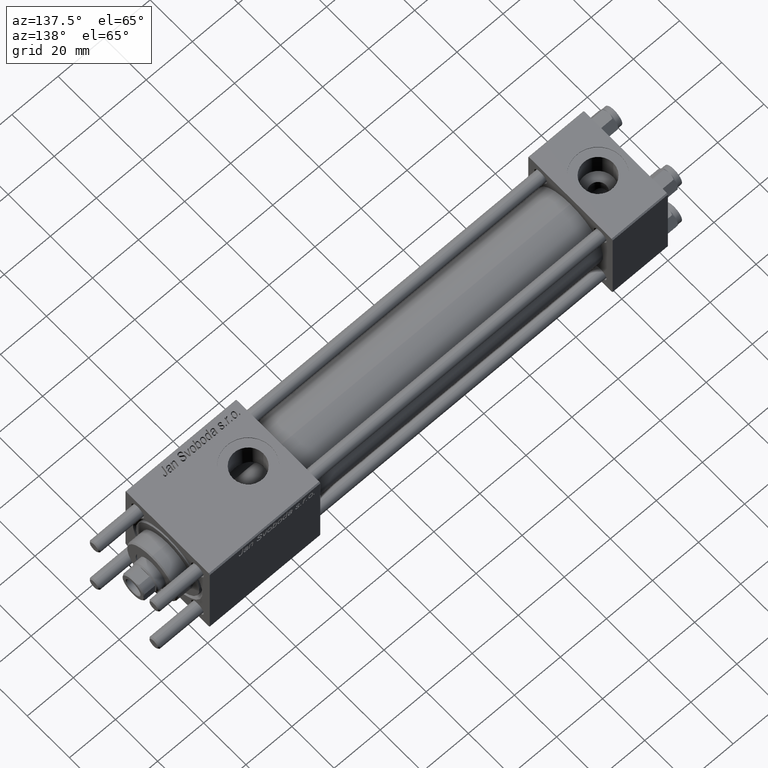
[diagram: clean part render]
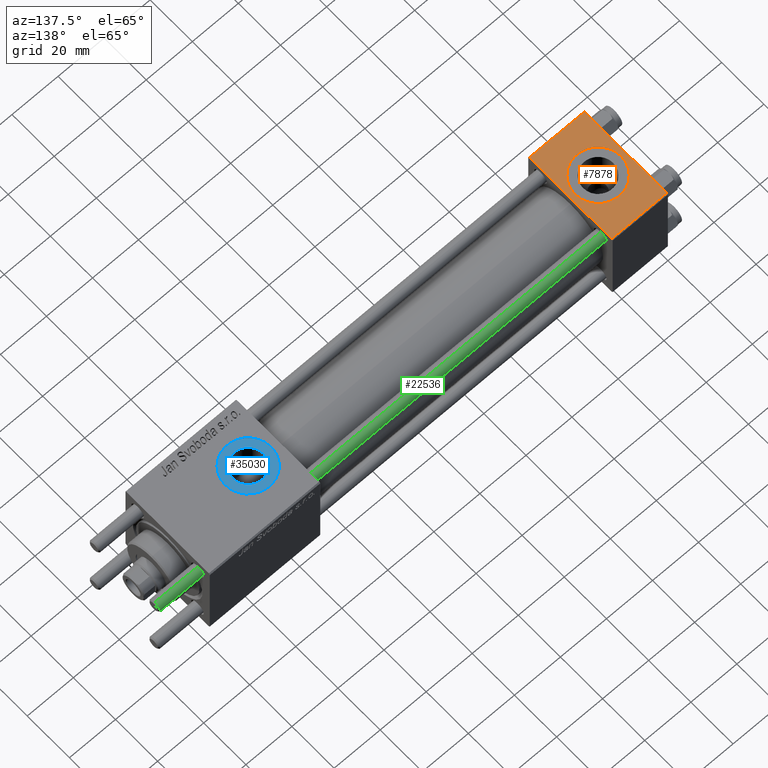
[diagram: same view with three faces highlighted in distinct colors, each labeled with its STEP entity id]
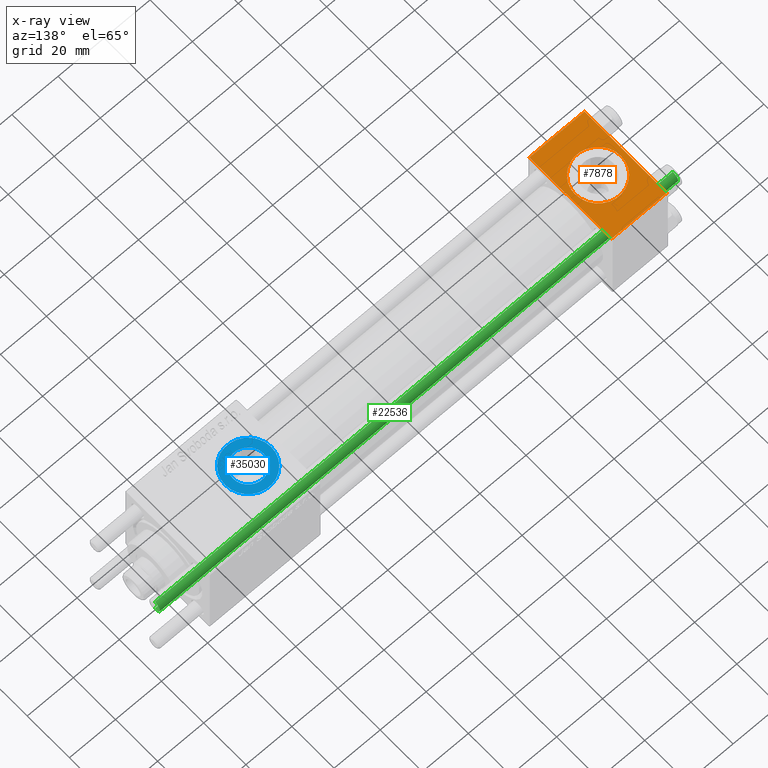
[diagram: x-ray of the same camera — body ghosted, the three highlighted faces saturated]
A machine part, auxiliary view with three faces highlighted in distinct colors.
The next image is the same camera in x-ray (body ghosted, the three faces saturated) — at least one of them is partly hidden behind the body in this view.
Their STEP definitions:

[orange] entity #7878 — the highlighted planar face has unit normal (0, 0, -1).
#1132 = EDGE_LOOP ( 'NONE', ( #19193, #31298 ) ) ;
#3877 = VERTEX_POINT ( 'NONE', #51903 ) ;
#5362 = AXIS2_PLACEMENT_3D ( 'NONE', #57472, #30536, #21689 ) ;
#6074 = VERTEX_POINT ( 'NONE', #17380 ) ;
#6558 = DIRECTION ( 'NONE',  ( 0.000000000000000000, 0.000000000000000000, 1.000000000000000000 ) ) ;
#7878 = ADVANCED_FACE ( 'NONE', ( #57765, #49479 ), #53912, .F. ) ;
#9175 = DIRECTION ( 'NONE',  ( -1.000000000000000000, 0.000000000000000000, 0.000000000000000000 ) ) ;
#10989 = CARTESIAN_POINT ( 'NONE',  ( 12.00000000000000000, 1.540743955509788682E-30, 19.99999999999999645 ) ) ;
#12263 = VERTEX_POINT ( 'NONE', #24461 ) ;
#12988 = VERTEX_POINT ( 'NONE', #41392 ) ;
#17380 = CARTESIAN_POINT ( 'NONE',  ( 2.000000000000003553, 1.224646799147354440E-15, 19.99999999999999645 ) ) ;
#18471 = CIRCLE ( 'NONE', #58136, 9.999999999999998224 ) ;
#19193 = ORIENTED_EDGE ( 'NONE', *, *, #33051, .F. ) ;
#19494 = VECTOR ( 'NONE', #9175, 1000.000000000000000 ) ;
#20045 = LINE ( 'NONE', #29478, #38331 ) ;
#21689 = DIRECTION ( 'NONE',  ( 0.000000000000000000, 1.000000000000000000, 2.602085213965210149E-16 ) ) ;
#22094 = CARTESIAN_POINT ( 'NONE',  ( 0.000000000000000000, -19.49999999999999289, 19.99999999999998934 ) ) ;
#23766 = CARTESIAN_POINT ( 'NONE',  ( 22.00000000000000000, 1.540743955509788682E-30, 19.99999999999999645 ) ) ;
#24461 = CARTESIAN_POINT ( 'NONE',  ( 0.000000000000000000, 19.50000000000000000, 20.00000000000000000 ) ) ;
#24580 = DIRECTION ( 'NONE',  ( 1.000000000000000000, 0.000000000000000000, 0.000000000000000000 ) ) ;
#25229 = DIRECTION ( 'NONE',  ( 0.000000000000000000, -1.000000000000000000, -2.602085213965210149E-16 ) ) ;
#26885 = EDGE_CURVE ( 'NONE', #12988, #3877, #47720, .T. ) ;
#29478 = CARTESIAN_POINT ( 'NONE',  ( 0.000000000000000000, 20.00000000000000000, 20.00000000000000000 ) ) ;
#30536 = DIRECTION ( 'NONE',  ( 0.000000000000000000, 2.602085213965210149E-16, -1.000000000000000000 ) ) ;
#30614 = DIRECTION ( 'NONE',  ( 1.000000000000000000, 0.000000000000000000, 0.000000000000000000 ) ) ;
#31298 = ORIENTED_EDGE ( 'NONE', *, *, #56520, .F. ) ;
#32982 = EDGE_CURVE ( 'NONE', #12263, #38892, #20045, .T. ) ;
#33051 = EDGE_CURVE ( 'NONE', #36404, #6074, #18471, .T. ) ;
#33211 = VECTOR ( 'NONE', #25229, 1000.000000000000000 ) ;
#34188 = EDGE_CURVE ( 'NONE', #12988, #12263, #36967, .T. ) ;
#34325 = ORIENTED_EDGE ( 'NONE', *, *, #34188, .T. ) ;
#34988 = ORIENTED_EDGE ( 'NONE', *, *, #26885, .F. ) ;
#35261 = CARTESIAN_POINT ( 'NONE',  ( 24.00000000000000000, 20.00000000000000000, 20.00000000000000000 ) ) ;
#36404 = VERTEX_POINT ( 'NONE', #23766 ) ;
#36967 = LINE ( 'NONE', #49678, #19494 ) ;
#38331 = VECTOR ( 'NONE', #42520, 1000.000000000000000 ) ;
#38892 = VERTEX_POINT ( 'NONE', #22094 ) ;
#39207 = ORIENTED_EDGE ( 'NONE', *, *, #41551, .T. ) ;
#39527 = LINE ( 'NONE', #49862, #42205 ) ;
#39741 = DIRECTION ( 'NONE',  ( 0.000000000000000000, 0.000000000000000000, 1.000000000000000000 ) ) ;
#39834 = ORIENTED_EDGE ( 'NONE', *, *, #32982, .T. ) ;
#41392 = CARTESIAN_POINT ( 'NONE',  ( 24.00000000000000000, 19.50000000000000000, 20.00000000000000000 ) ) ;
#41551 = EDGE_CURVE ( 'NONE', #38892, #3877, #39527, .T. ) ;
#42205 = VECTOR ( 'NONE', #30614, 1000.000000000000000 ) ;
#42520 = DIRECTION ( 'NONE',  ( 0.000000000000000000, -1.000000000000000000, -2.602085213965210149E-16 ) ) ;
#43488 = AXIS2_PLACEMENT_3D ( 'NONE', #10989, #6558, #24580 ) ;
#47267 = CIRCLE ( 'NONE', #43488, 9.999999999999998224 ) ;
#47720 = LINE ( 'NONE', #35261, #33211 ) ;
#49479 = FACE_OUTER_BOUND ( 'NONE', #56739, .T. ) ;
#49678 = CARTESIAN_POINT ( 'NONE',  ( 0.000000000000000000, 19.50000000000000000, 20.00000000000000000 ) ) ;
#49780 = CARTESIAN_POINT ( 'NONE',  ( 12.00000000000000000, 1.540743955509788682E-30, 19.99999999999999645 ) ) ;
#49862 = CARTESIAN_POINT ( 'NONE',  ( 24.00000000000000000, -19.49999999999999289, 19.99999999999998934 ) ) ;
#50080 = DIRECTION ( 'NONE',  ( 1.000000000000000000, 0.000000000000000000, 0.000000000000000000 ) ) ;
#51903 = CARTESIAN_POINT ( 'NONE',  ( 24.00000000000000000, -19.49999999999999289, 19.99999999999998934 ) ) ;
#53912 = PLANE ( 'NONE',  #5362 ) ;
#56520 = EDGE_CURVE ( 'NONE', #6074, #36404, #47267, .T. ) ;
#56739 = EDGE_LOOP ( 'NONE', ( #39834, #39207, #34988, #34325 ) ) ;
#57472 = CARTESIAN_POINT ( 'NONE',  ( 24.00000000000000000, 20.00000000000000000, 20.00000000000000000 ) ) ;
#57765 = FACE_BOUND ( 'NONE', #1132, .T. ) ;
#58136 = AXIS2_PLACEMENT_3D ( 'NONE', #49780, #39741, #50080 ) ;

[blue] entity #35030 — the highlighted planar face has unit normal (0, 0, 1).
#914 = AXIS2_PLACEMENT_3D ( 'NONE', #40180, #13274, #53477 ) ;
#1476 = CARTESIAN_POINT ( 'NONE',  ( 170.5800000000000409, -9.289058821378450943E-16, 19.80000000000000071 ) ) ;
#2653 = FACE_BOUND ( 'NONE', #19900, .T. ) ;
#4528 = VERTEX_POINT ( 'NONE', #26259 ) ;
#4620 = DIRECTION ( 'NONE',  ( -0.000000000000000000, -0.000000000000000000, -1.000000000000000000 ) ) ;
#4988 = VERTEX_POINT ( 'NONE', #51732 ) ;
#8526 = ORIENTED_EDGE ( 'NONE', *, *, #55396, .T. ) ;
#10045 = AXIS2_PLACEMENT_3D ( 'NONE', #20389, #38435, #16255 ) ;
#13274 = DIRECTION ( 'NONE',  ( 0.000000000000000000, 0.000000000000000000, 1.000000000000000000 ) ) ;
#16187 = EDGE_CURVE ( 'NONE', #4528, #37779, #29076, .T. ) ;
#16255 = DIRECTION ( 'NONE',  ( 1.000000000000000000, 0.000000000000000000, -0.000000000000000000 ) ) ;
#18466 = CARTESIAN_POINT ( 'NONE',  ( 154.0000000000000284, -5.100766768294525560E-16, 19.80000000000000071 ) ) ;
#18703 = AXIS2_PLACEMENT_3D ( 'NONE', #31506, #4620, #22657 ) ;
#18996 = ORIENTED_EDGE ( 'NONE', *, *, #41935, .T. ) ;
#19463 = DIRECTION ( 'NONE',  ( 1.000000000000000000, 0.000000000000000000, 0.000000000000000000 ) ) ;
#19900 = EDGE_LOOP ( 'NONE', ( #38485, #18996 ) ) ;
#20051 = DIRECTION ( 'NONE',  ( -0.000000000000000000, -0.000000000000000000, -1.000000000000000000 ) ) ;
#20389 = CARTESIAN_POINT ( 'NONE',  ( 164.0000000000000284, -1.734723475976806897E-15, 19.80000000000000071 ) ) ;
#20907 = EDGE_CURVE ( 'NONE', #38414, #4988, #26347, .T. ) ;
#20911 = CIRCLE ( 'NONE', #47357, 10.00000000000000888 ) ;
#22057 = EDGE_LOOP ( 'NONE', ( #8526, #37013 ) ) ;
#22657 = DIRECTION ( 'NONE',  ( 1.000000000000000000, 0.000000000000000000, 0.000000000000000000 ) ) ;
#22895 = DIRECTION ( 'NONE',  ( 0.000000000000000000, 0.000000000000000000, 1.000000000000000000 ) ) ;
#25101 = FACE_OUTER_BOUND ( 'NONE', #22057, .T. ) ;
#26259 = CARTESIAN_POINT ( 'NONE',  ( 157.4200000000000443, -1.734723475976806897E-15, 19.80000000000000071 ) ) ;
#26347 = CIRCLE ( 'NONE', #914, 10.00000000000000888 ) ;
#29076 = CIRCLE ( 'NONE', #18703, 6.580000000000002736 ) ;
#29245 = PLANE ( 'NONE',  #10045 ) ;
#31506 = CARTESIAN_POINT ( 'NONE',  ( 164.0000000000000284, -1.734723475976806897E-15, 19.80000000000000071 ) ) ;
#33751 = CIRCLE ( 'NONE', #51709, 6.580000000000002736 ) ;
#35030 = ADVANCED_FACE ( 'NONE', ( #2653, #25101 ), #29245, .T. ) ;
#37013 = ORIENTED_EDGE ( 'NONE', *, *, #20907, .T. ) ;
#37779 = VERTEX_POINT ( 'NONE', #1476 ) ;
#38414 = VERTEX_POINT ( 'NONE', #18466 ) ;
#38435 = DIRECTION ( 'NONE',  ( 0.000000000000000000, 0.000000000000000000, 1.000000000000000000 ) ) ;
#38485 = ORIENTED_EDGE ( 'NONE', *, *, #16187, .T. ) ;
#40180 = CARTESIAN_POINT ( 'NONE',  ( 164.0000000000000284, -1.734723475976806897E-15, 19.80000000000000071 ) ) ;
#41935 = EDGE_CURVE ( 'NONE', #37779, #4528, #33751, .T. ) ;
#47357 = AXIS2_PLACEMENT_3D ( 'NONE', #50985, #22895, #55118 ) ;
#50985 = CARTESIAN_POINT ( 'NONE',  ( 164.0000000000000284, -1.734723475976806897E-15, 19.80000000000000071 ) ) ;
#51709 = AXIS2_PLACEMENT_3D ( 'NONE', #56116, #20051, #19463 ) ;
#51732 = CARTESIAN_POINT ( 'NONE',  ( 174.0000000000000568, -1.734723475976806897E-15, 19.80000000000000071 ) ) ;
#53477 = DIRECTION ( 'NONE',  ( 1.000000000000000000, 0.000000000000000000, 0.000000000000000000 ) ) ;
#55118 = DIRECTION ( 'NONE',  ( 1.000000000000000000, 0.000000000000000000, 0.000000000000000000 ) ) ;
#55396 = EDGE_CURVE ( 'NONE', #4988, #38414, #20911, .T. ) ;
#56116 = CARTESIAN_POINT ( 'NONE',  ( 164.0000000000000284, -1.734723475976806897E-15, 19.80000000000000071 ) ) ;

[green] entity #22536 — the highlighted cylindrical surface (edge-blend (fillet) strip) has radius 2.5 mm, axis along (1, -0, -0).
#2560 = CARTESIAN_POINT ( 'NONE',  ( 2.500000000000000000, 3.061616997868383141E-16, 226.0000000000000000 ) ) ;
#2764 = CYLINDRICAL_SURFACE ( 'NONE', #19843, 2.500000000000000000 ) ;
#3981 = VERTEX_POINT ( 'NONE', #37058 ) ;
#6705 = CIRCLE ( 'NONE', #13270, 2.500000000000000000 ) ;
#6984 = LINE ( 'NONE', #2560, #14325 ) ;
#7074 = CIRCLE ( 'NONE', #20298, 2.500000000000000000 ) ;
#10614 = CARTESIAN_POINT ( 'NONE',  ( 0.000000000000000000, 0.000000000000000000, 0.4999999999999726885 ) ) ;
#11693 = LINE ( 'NONE', #34436, #50834 ) ;
#13270 = AXIS2_PLACEMENT_3D ( 'NONE', #10614, #36930, #28335 ) ;
#13643 = CARTESIAN_POINT ( 'NONE',  ( 2.500000000000000000, 3.061616997868383141E-16, 0.4999999999999726885 ) ) ;
#14325 = VECTOR ( 'NONE', #56665, 1000.000000000000000 ) ;
#16217 = CARTESIAN_POINT ( 'NONE',  ( 2.500000000000000000, 3.061616997868383141E-16, 225.5000000000000284 ) ) ;
#16340 = EDGE_CURVE ( 'NONE', #3981, #48843, #11693, .T. ) ;
#16363 = DIRECTION ( 'NONE',  ( -0.000000000000000000, -0.000000000000000000, -1.000000000000000000 ) ) ;
#18006 = ORIENTED_EDGE ( 'NONE', *, *, #26418, .T. ) ;
#19843 = AXIS2_PLACEMENT_3D ( 'NONE', #35245, #16363, #48562 ) ;
#20298 = AXIS2_PLACEMENT_3D ( 'NONE', #38232, #55394, #50962 ) ;
#22536 = ADVANCED_FACE ( 'NONE', ( #52146 ), #2764, .T. ) ;
#24035 = EDGE_LOOP ( 'NONE', ( #49718, #18006, #57684, #45631 ) ) ;
#26418 = EDGE_CURVE ( 'NONE', #58339, #52846, #6984, .T. ) ;
#28335 = DIRECTION ( 'NONE',  ( 1.000000000000000000, 0.000000000000000000, 0.000000000000000000 ) ) ;
#29343 = EDGE_CURVE ( 'NONE', #3981, #58339, #7074, .T. ) ;
#29702 = DIRECTION ( 'NONE',  ( -0.000000000000000000, -0.000000000000000000, -1.000000000000000000 ) ) ;
#34436 = CARTESIAN_POINT ( 'NONE',  ( -2.500000000000000000, 0.000000000000000000, 226.0000000000000000 ) ) ;
#34485 = CARTESIAN_POINT ( 'NONE',  ( -2.500000000000000000, 0.000000000000000000, 0.4999999999999726885 ) ) ;
#35245 = CARTESIAN_POINT ( 'NONE',  ( 0.000000000000000000, 0.000000000000000000, 226.0000000000000000 ) ) ;
#36930 = DIRECTION ( 'NONE',  ( -0.000000000000000000, -0.000000000000000000, 1.000000000000000000 ) ) ;
#37058 = CARTESIAN_POINT ( 'NONE',  ( -2.500000000000000000, 0.000000000000000000, 225.5000000000000284 ) ) ;
#38232 = CARTESIAN_POINT ( 'NONE',  ( 0.000000000000000000, 0.000000000000000000, 225.5000000000000284 ) ) ;
#45631 = ORIENTED_EDGE ( 'NONE', *, *, #16340, .F. ) ;
#48562 = DIRECTION ( 'NONE',  ( -1.000000000000000000, 0.000000000000000000, 0.000000000000000000 ) ) ;
#48843 = VERTEX_POINT ( 'NONE', #34485 ) ;
#49718 = ORIENTED_EDGE ( 'NONE', *, *, #29343, .T. ) ;
#50834 = VECTOR ( 'NONE', #29702, 1000.000000000000000 ) ;
#50962 = DIRECTION ( 'NONE',  ( 1.000000000000000000, 0.000000000000000000, 0.000000000000000000 ) ) ;
#52146 = FACE_OUTER_BOUND ( 'NONE', #24035, .T. ) ;
#52846 = VERTEX_POINT ( 'NONE', #13643 ) ;
#53146 = EDGE_CURVE ( 'NONE', #52846, #48843, #6705, .T. ) ;
#55394 = DIRECTION ( 'NONE',  ( 0.000000000000000000, 0.000000000000000000, -1.000000000000000000 ) ) ;
#56665 = DIRECTION ( 'NONE',  ( -0.000000000000000000, -0.000000000000000000, -1.000000000000000000 ) ) ;
#57684 = ORIENTED_EDGE ( 'NONE', *, *, #53146, .T. ) ;
#58339 = VERTEX_POINT ( 'NONE', #16217 ) ;